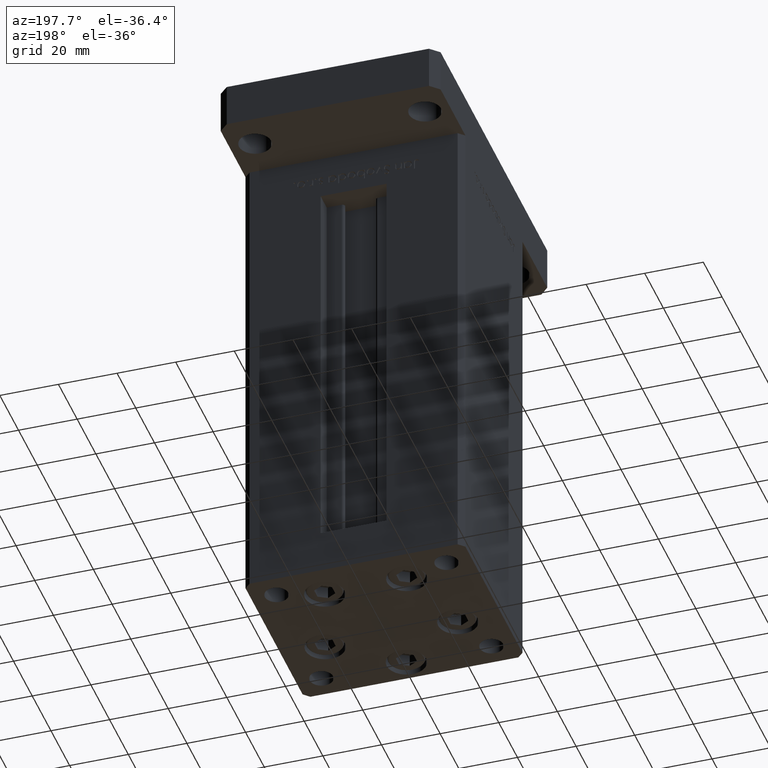
[diagram: clean part render]
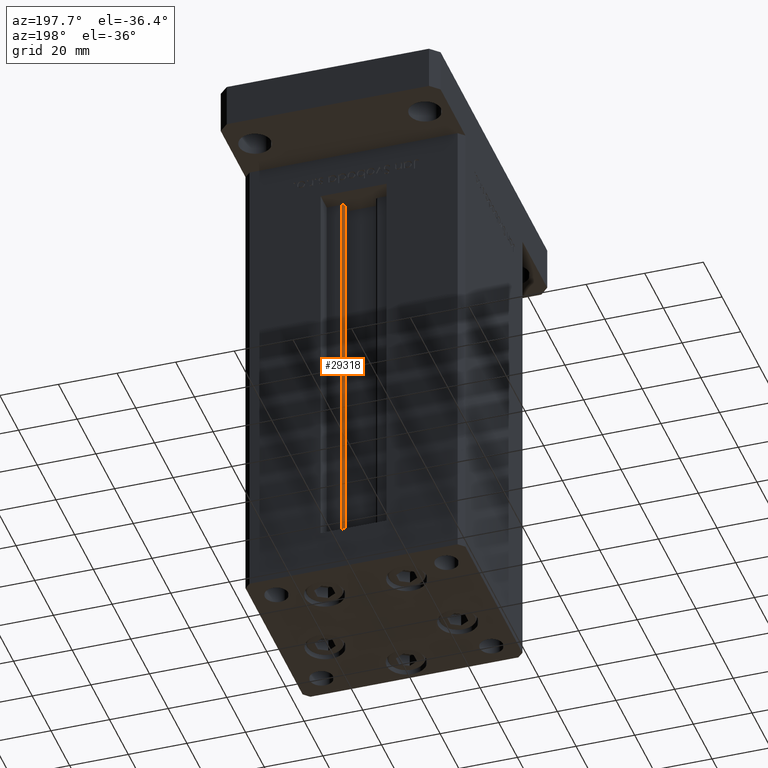
[diagram: same view with one face highlighted and labeled with its STEP entity id]
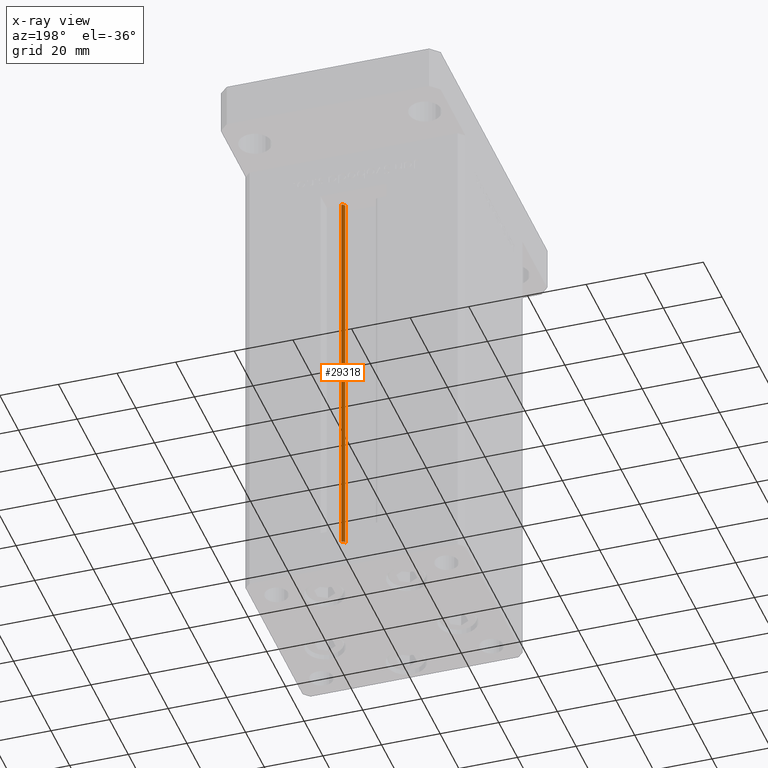
[diagram: x-ray of the same camera — body ghosted, the highlighted face saturated]
A machine part, auxiliary view. The second image highlights one B-rep face of the part: STEP entity #29318.
The next image is the same camera in x-ray: the body ghosted, the highlighted face saturated — about 0% of this face is hidden behind the body in this view.
In plain terms, the highlighted cylindrical surface (edge-blend (fillet) strip) has radius 0.9333 mm, axis along (0, 0, 1).
Its self-contained STEP definition (entity closure, byte-faithful):
#1246 = DIRECTION ( 'NONE',  ( 1.000000000000000000, 0.000000000000000000, 0.000000000000000000 ) ) ;
#1290 = CARTESIAN_POINT ( 'NONE',  ( 6.183333333334001480, 25.06666666666599141, 0.000000000000000000 ) ) ;
#5069 = FACE_OUTER_BOUND ( 'NONE', #48349, .T. ) ;
#5550 = DIRECTION ( 'NONE',  ( -0.000000000000000000, -0.000000000000000000, 1.000000000000000000 ) ) ;
#6663 = ORIENTED_EDGE ( 'NONE', *, *, #8822, .T. ) ;
#7677 = AXIS2_PLACEMENT_3D ( 'NONE', #1290, #21943, #17878 ) ;
#8238 = EDGE_CURVE ( 'NONE', #52546, #36481, #43179, .T. ) ;
#8822 = EDGE_CURVE ( 'NONE', #28672, #43926, #26730, .T. ) ;
#11237 = CARTESIAN_POINT ( 'NONE',  ( 6.183333333334001480, 25.99999999999999289, 0.000000000000000000 ) ) ;
#16123 = EDGE_CURVE ( 'NONE', #36481, #43926, #47004, .T. ) ;
#16622 = CARTESIAN_POINT ( 'NONE',  ( 6.183333333334001480, 25.06666666666599141, 136.0000000000000000 ) ) ;
#17226 = AXIS2_PLACEMENT_3D ( 'NONE', #16622, #45855, #42048 ) ;
#17878 = DIRECTION ( 'NONE',  ( 1.000000000000000000, 0.000000000000000000, 0.000000000000000000 ) ) ;
#19467 = ORIENTED_EDGE ( 'NONE', *, *, #8238, .F. ) ;
#21903 = CARTESIAN_POINT ( 'NONE',  ( 6.183333333334001480, 25.06666666666599141, 0.000000000000000000 ) ) ;
#21943 = DIRECTION ( 'NONE',  ( -0.000000000000000000, -0.000000000000000000, -1.000000000000000000 ) ) ;
#26177 = CARTESIAN_POINT ( 'NONE',  ( 6.183333333334001480, 25.99999999999999289, 0.000000000000000000 ) ) ;
#26184 = VECTOR ( 'NONE', #51932, 1000.000000000000000 ) ;
#26730 = CIRCLE ( 'NONE', #17226, 0.9333333333340008142 ) ;
#28672 = VERTEX_POINT ( 'NONE', #47183 ) ;
#28887 = CARTESIAN_POINT ( 'NONE',  ( 5.375042956467947164, 24.59999999999899245, 0.000000000000000000 ) ) ;
#29318 = ADVANCED_FACE ( 'NONE', ( #5069 ), #30019, .T. ) ;
#30019 = CYLINDRICAL_SURFACE ( 'NONE', #46742, 0.9333333333340008142 ) ;
#34680 = CARTESIAN_POINT ( 'NONE',  ( 6.183333333334001480, 25.99999999999999289, 136.0000000000000000 ) ) ;
#36067 = EDGE_CURVE ( 'NONE', #52546, #28672, #52725, .T. ) ;
#36481 = VERTEX_POINT ( 'NONE', #11237 ) ;
#38390 = DIRECTION ( 'NONE',  ( -0.000000000000000000, -0.000000000000000000, 1.000000000000000000 ) ) ;
#38917 = ORIENTED_EDGE ( 'NONE', *, *, #16123, .F. ) ;
#41110 = ORIENTED_EDGE ( 'NONE', *, *, #36067, .T. ) ;
#42048 = DIRECTION ( 'NONE',  ( 1.000000000000000000, 0.000000000000000000, 0.000000000000000000 ) ) ;
#43179 = CIRCLE ( 'NONE', #7677, 0.9333333333340008142 ) ;
#43926 = VERTEX_POINT ( 'NONE', #34680 ) ;
#44851 = CARTESIAN_POINT ( 'NONE',  ( 5.375042956467947164, 24.59999999999899245, 0.000000000000000000 ) ) ;
#45855 = DIRECTION ( 'NONE',  ( 0.000000000000000000, 0.000000000000000000, -1.000000000000000000 ) ) ;
#46742 = AXIS2_PLACEMENT_3D ( 'NONE', #21903, #38390, #1246 ) ;
#47004 = LINE ( 'NONE', #26177, #49421 ) ;
#47183 = CARTESIAN_POINT ( 'NONE',  ( 5.375042956467948052, 24.59999999999899245, 136.0000000000000000 ) ) ;
#48349 = EDGE_LOOP ( 'NONE', ( #38917, #19467, #41110, #6663 ) ) ;
#49421 = VECTOR ( 'NONE', #5550, 1000.000000000000000 ) ;
#51932 = DIRECTION ( 'NONE',  ( -0.000000000000000000, -0.000000000000000000, 1.000000000000000000 ) ) ;
#52546 = VERTEX_POINT ( 'NONE', #28887 ) ;
#52725 = LINE ( 'NONE', #44851, #26184 ) ;